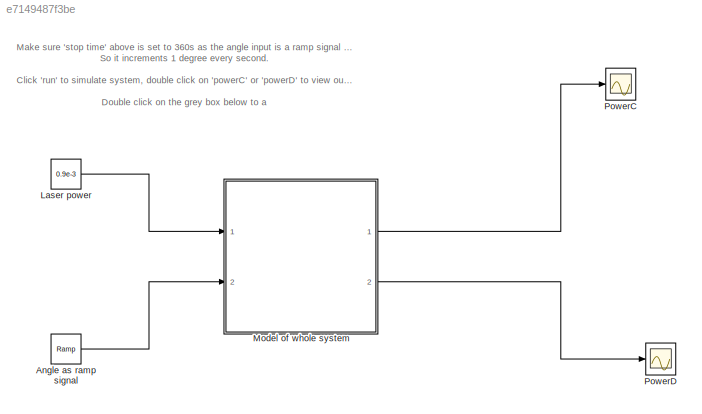
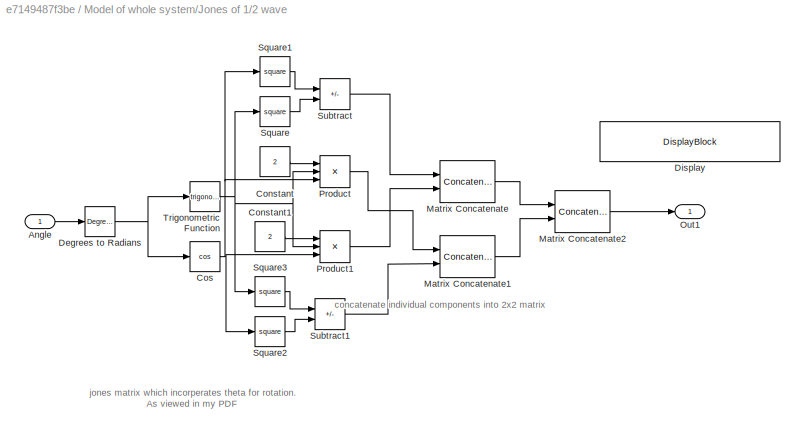
MODEL slx_e7149487f3be
KIND model
CONFIG AbsTol = auto
CONFIG EnableMultiTasking = off
CONFIG FixedStep = auto
CONFIG MaxStep = auto
CONFIG MinStep = auto
CONFIG RelTol = 1e-3
CONFIG SampleTimeConstraint = Unconstrained
CONFIG Solver = VariableStepAuto
CONFIG SolverName = VariableStepAuto
CONFIG StartTime = 0.0
CONFIG StopTime = 360
BLOCK [Reference] Angle as ramp signal  REF=simulink/Sources/Ramp
  Ports = [0, 1]
  SourceBlock = simulink/Sources/Ramp
  SourceProductBaseCode = SL
  SourceType = Ramp
BLOCK [Constant] Laser power
  Value = 0.9e-3
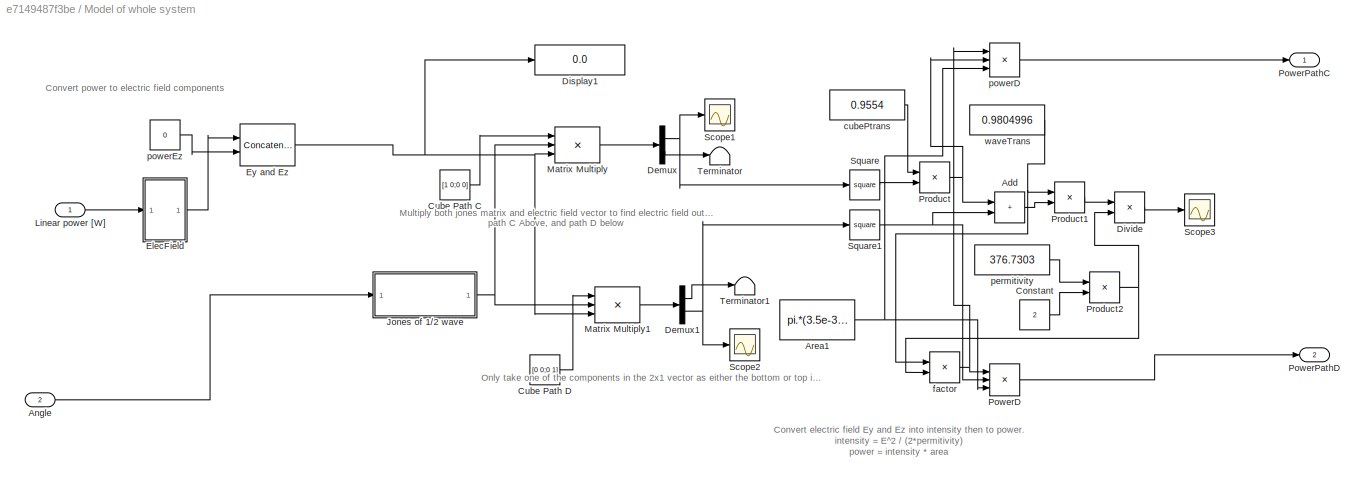
BLOCK [SubSystem] Model of whole system
  Ports = [2, 2]
  RequestExecContextInheritance = off
BLOCK [Sum] Model of whole system/Add
  IconShape = rectangular
  Ports = [2, 1]
BLOCK [Inport] Model of whole system/Angle
  Port = 2
BLOCK [Constant] Model of whole system/Area1
  Value = pi.*(3.5e-3.^2)
BLOCK [Constant] Model of whole system/Constant
  Value = 2
BLOCK [Constant] Model of whole system/Cube Path C
  Value = [1 0;0 0]
BLOCK [Constant] Model of whole system/Cube Path D
  Value = [0 0;0 1]
BLOCK [Demux] Model of whole system/Demux
  Outputs = 2
  Ports = [1, 2]
BLOCK [Demux] Model of whole system/Demux1
  Outputs = 2
  Ports = [1, 2]
BLOCK [Display] Model of whole system/Display1
  Decimation = 1
  Ports = [1]
BLOCK [Product] Model of whole system/Divide
  Inputs = */
  Ports = [2, 1]
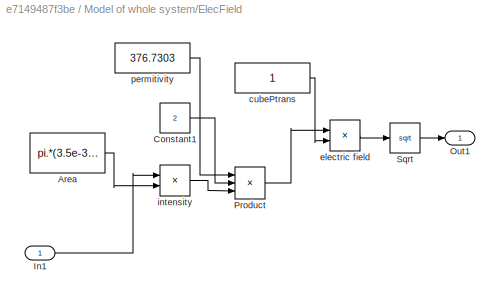
BLOCK [SubSystem] Model of whole system/ElecField
  Ports = [1, 1]
  RequestExecContextInheritance = off
BLOCK [Constant] Model of whole system/ElecField/Area
  Value = pi.*(3.5e-3.^2)
BLOCK [Constant] Model of whole system/ElecField/Constant1
  Value = 2
BLOCK [Inport] Model of whole system/ElecField/In1
BLOCK [Outport] Model of whole system/ElecField/Out1
BLOCK [Product] Model of whole system/ElecField/Product
  Inputs = 3
  Ports = [3, 1]
BLOCK [Sqrt] Model of whole system/ElecField/Sqrt
BLOCK [Constant] Model of whole system/ElecField/cubePtrans
BLOCK [Product] Model of whole system/ElecField/electric field
  Inputs = */
  Ports = [2, 1]
BLOCK [Product] Model of whole system/ElecField/intensity
  Inputs = */
  Ports = [2, 1]
BLOCK [Constant] Model of whole system/ElecField/permitivity
  Value = 376.7303
BLOCK [Concatenate] Model of whole system/Ey and Ez
  Mode = Multidimensional array
  Ports = [2, 1]
BLOCK [SubSystem] Model of whole system/Jones of 1//2 wave
  Ports = [1, 1]
  RequestExecContextInheritance = off
BLOCK [Inport] Model of whole system/Jones of 1//2 wave/Angle
BLOCK [Constant] Model of whole system/Jones of 1//2 wave/Constant
  Value = 2
BLOCK [Constant] Model of whole system/Jones of 1//2 wave/Constant1
  Value = 2
BLOCK [Trigonometry] Model of whole system/Jones of 1//2 wave/Cos
  Operator = cos
  Ports = [1, 1]
BLOCK [Reference] Model of whole system/Jones of 1//2 wave/Degrees to Radians  REF=simulink_extras/Transformations/Degrees to
Radians
  Ports = [1, 1]
  SourceBlock = simulink_extras/Transformations/Degrees to\nRadians
  SourceProductBaseCode = SL
  SourceType = DegreesToRadians
BLOCK [DisplayBlock] Model of whole system/Jones of 1//2 wave/Display
  Format = short
  LabelPosition = Hide
  Transparency = 1
BLOCK [Concatenate] Model of whole system/Jones of 1//2 wave/Matrix Concatenate
  ConcatenateDimension = 2
  Mode = Multidimensional array
  Ports = [2, 1]
BLOCK [Concatenate] Model of whole system/Jones of 1//2 wave/Matrix Concatenate1
  ConcatenateDimension = 2
  Mode = Multidimensional array
  Ports = [2, 1]
BLOCK [Concatenate] Model of whole system/Jones of 1//2 wave/Matrix Concatenate2
  Mode = Multidimensional array
  Ports = [2, 1]
BLOCK [Outport] Model of whole system/Jones of 1//2 wave/Out1
BLOCK [Product] Model of whole system/Jones of 1//2 wave/Product
  Inputs = 3
  Ports = [3, 1]
BLOCK [Product] Model of whole system/Jones of 1//2 wave/Product1
  Inputs = 3
  Ports = [3, 1]
BLOCK [Math] Model of whole system/Jones of 1//2 wave/Square
  Operator = square
  Ports = [1, 1]
BLOCK [Math] Model of whole system/Jones of 1//2 wave/Square1
  Operator = square
  Ports = [1, 1]
BLOCK [Math] Model of whole system/Jones of 1//2 wave/Square2
  Operator = square
  Ports = [1, 1]
BLOCK [Math] Model of whole system/Jones of 1//2 wave/Square3
  Operator = square
  Ports = [1, 1]
BLOCK [Sum] Model of whole system/Jones of 1//2 wave/Subtract
  IconShape = rectangular
  Inputs = +-
  Ports = [2, 1]
BLOCK [Sum] Model of whole system/Jones of 1//2 wave/Subtract1
  IconShape = rectangular
  Inputs = +-
  Ports = [2, 1]
BLOCK [Trigonometry] Model of whole system/Jones of 1//2 wave/Trigonometric Function
  Ports = [1, 1]
BLOCK [Inport] Model of whole system/Linear power [W]
BLOCK [Product] Model of whole system/Matrix Multiply
  Inputs = 3
  Multiplication = Matrix(*)
  Ports = [3, 1]
BLOCK [Product] Model of whole system/Matrix Multiply1
  Inputs = 3
  Multiplication = Matrix(*)
  Ports = [3, 1]
BLOCK [Product] Model of whole system/PowerD
  Inputs = 3
  Ports = [3, 1]
BLOCK [Outport] Model of whole system/PowerPathC
BLOCK [Outport] Model of whole system/PowerPathD
  Port = 2
BLOCK [Product] Model of whole system/Product
  Ports = [2, 1]
BLOCK [Product] Model of whole system/Product1
  Ports = [2, 1]
BLOCK [Product] Model of whole system/Product2
  Ports = [2, 1]
BLOCK [Scope] Model of whole system/Scope1
  Floating = off
  NumInputPorts = 1
  Ports = [1]
  ScopeSpecificationString = Simulink.scopes.TimeScopeBlockCfg('CurrentConfiguration', extmgr.ConfigurationSet(extmgr.Configuration('Core','General UI',true),extmgr.Configuration('Core','Source UI',true),extmgr.Configuration('Sources','WiredSimulink',true,'DataLoggingVariableName','ScopeData1'),extmgr.Configuration('Visuals','Time Domain',true,'SerializedDisplays',{struct('MinYLimReal','-164.75002','MaxYLimReal','165.79673','...<+1380ch>
BLOCK [Scope] Model of whole system/Scope2
  Floating = off
  NumInputPorts = 1
  Ports = [1]
  ScopeSpecificationString = Simulink.scopes.TimeScopeBlockCfg('CurrentConfiguration', extmgr.ConfigurationSet(extmgr.Configuration('Core','General UI',true),extmgr.Configuration('Core','Source UI',true),extmgr.Configuration('Sources','WiredSimulink',true,'DataLoggingVariableName','ScopeData2'),extmgr.Configuration('Visuals','Time Domain',true,'SerializedDisplays',{struct('MinYLimReal','-165.60015','MaxYLimReal','165.60015','...<+1481ch>
BLOCK [Scope] Model of whole system/Scope3
  Floating = off
  NumInputPorts = 1
  Ports = [1]
  ScopeSpecificationString = Simulink.scopes.TimeScopeBlockCfg('CurrentConfiguration', extmgr.ConfigurationSet(extmgr.Configuration('Core','General UI',true),extmgr.Configuration('Core','Source UI',true),extmgr.Configuration('Sources','WiredSimulink',true),extmgr.Configuration('Visuals','Time Domain',true,'SerializedDisplays',{struct('MinYLimReal','21.77999','MaxYLimReal','23.05329','YLabelReal','','MinYLimMag','21.77999','Ma...<+1332ch>
BLOCK [Math] Model of whole system/Square
  Operator = square
  Ports = [1, 1]
BLOCK [Math] Model of whole system/Square1
  Operator = square
  Ports = [1, 1]
BLOCK [Terminator] Model of whole system/Terminator
BLOCK [Terminator] Model of whole system/Terminator1
BLOCK [Constant] Model of whole system/cubePtrans
  Value = 0.9554
BLOCK [Product] Model of whole system/factor
  Inputs = */
  Ports = [2, 1]
BLOCK [Constant] Model of whole system/permitivity
  Value = 376.7303
BLOCK [Product] Model of whole system/powerD
  Inputs = 3
  Ports = [3, 1]
BLOCK [Constant] Model of whole system/powerEz
  Value = 0
BLOCK [Constant] Model of whole system/waveTrans
  Value = 0.9804996
BLOCK [Scope] PowerC
  Floating = off
  NumInputPorts = 1
  Ports = [1]
  ScopeSpecificationString = Simulink.scopes.TimeScopeBlockCfg('CurrentConfiguration', extmgr.ConfigurationSet(extmgr.Configuration('Core','General UI',true),extmgr.Configuration('Core','Source UI',true),extmgr.Configuration('Sources','WiredSimulink',true,'DataLoggingVariableName','ScopeData3'),extmgr.Configuration('Visuals','Time Domain',true,'SerializedDisplays',{struct('MinYLimReal','-0.0001','MaxYLimReal','0.00095','YLabe...<+1380ch>
BLOCK [Scope] PowerD
  Floating = off
  NumInputPorts = 1
  Ports = [1]
  ScopeSpecificationString = Simulink.scopes.TimeScopeBlockCfg('CurrentConfiguration', extmgr.ConfigurationSet(extmgr.Configuration('Core','General UI',true),extmgr.Configuration('Core','Source UI',true),extmgr.Configuration('Sources','WiredSimulink',true,'DataLoggingVariableName','ScopeData4'),extmgr.Configuration('Visuals','Time Domain',true,'SerializedDisplays',{struct('MinYLimReal','0.00044','MaxYLimReal','0.00092','YLabe...<+1440ch>
ANNOTATION (root): Make sure 'stop time' above is set to 360s as the angle input is a ramp signal with gradient 1. So it increments 1 degree every second. Click 'run' to simulate system, double click on 'powerC' or 'powerD' to view output power graphs. Double click on the grey box below to a ccess subsystem.
ANNOTATION Model of whole system: Convert electric field Ey and Ez into intensity then to power. intensity = E^2 / (2*permitivity) power = intensity * area
ANNOTATION Model of whole system: Convert power to electric field components
ANNOTATION Model of whole system: Multiply both jones matrix and electric field vector to find electric field output. path C Above, and path D below
ANNOTATION Model of whole system: Only take one of the components in the 2x1 vector as either the bottom or top is always 0.
ANNOTATION Model of whole system/Jones of 1//2 wave: concatenate individual components into 2x2 matrix
ANNOTATION Model of whole system/Jones of 1//2 wave: jones matrix which incorperates theta for rotation. As viewed in my PDF
LINE Angle as ramp signal:1 -> Model of whole system:2
LINE Laser power:1 -> Model of whole system:1
LINE Model of whole system/Add:1 -> Model of whole system/Product1:2
LINE Model of whole system/Angle:1 -> Model of whole system/Jones of 1//2 wave:1
NET Model of whole system/Area1:1 -> Model of whole system/PowerD:3, Model of whole system/powerD:3
LINE Model of whole system/Constant:1 -> Model of whole system/Product2:2
LINE Model of whole system/Cube Path C:1 -> Model of whole system/Matrix Multiply:1
LINE Model of whole system/Cube Path D:1 -> Model of whole system/Matrix Multiply1:1
LINE Model of whole system/Demux1:1 -> Model of whole system/Terminator1:1
NET Model of whole system/Demux1:2 -> Model of whole system/Scope2:1, Model of whole system/Square1:1
NET Model of whole system/Demux:1 -> Model of whole system/Scope1:1, Model of whole system/Square:1
LINE Model of whole system/Demux:2 -> Model of whole system/Terminator:1
LINE Model of whole system/Divide:1 -> Model of whole system/Scope3:1
LINE Model of whole system/ElecField/Area:1 -> Model of whole system/ElecField/intensity:2
LINE Model of whole system/ElecField/Constant1:1 -> Model of whole system/ElecField/Product:2
LINE Model of whole system/ElecField/In1:1 -> Model of whole system/ElecField/intensity:1
LINE Model of whole system/ElecField/Product:1 -> Model of whole system/ElecField/electric field:1
LINE Model of whole system/ElecField/Sqrt:1 -> Model of whole system/ElecField/Out1:1
LINE Model of whole system/ElecField/cubePtrans:1 -> Model of whole system/ElecField/electric field:2
LINE Model of whole system/ElecField/electric field:1 -> Model of whole system/ElecField/Sqrt:1
LINE Model of whole system/ElecField/intensity:1 -> Model of whole system/ElecField/Product:3
LINE Model of whole system/ElecField/permitivity:1 -> Model of whole system/ElecField/Product:1
LINE Model of whole system/ElecField:1 -> Model of whole system/Ey and Ez:1
NET Model of whole system/Ey and Ez:1 -> Model of whole system/Display1:1, Model of whole system/Matrix Multiply1:3, Model of whole system/Matrix Multiply:3
LINE Model of whole system/Jones of 1//2 wave/Angle:1 -> Model of whole system/Jones of 1//2 wave/Degrees to Radians:1
LINE Model of whole system/Jones of 1//2 wave/Constant1:1 -> Model of whole system/Jones of 1//2 wave/Product1:1
LINE Model of whole system/Jones of 1//2 wave/Constant:1 -> Model of whole system/Jones of 1//2 wave/Product:1
NET Model of whole system/Jones of 1//2 wave/Cos:1 -> Model of whole system/Jones of 1//2 wave/Product1:3, Model of whole system/Jones of 1//2 wave/Product:3, Model of whole system/Jones of 1//2 wave/Square1:1, Model of whole system/Jones of 1//2 wave/Square2:1
NET Model of whole system/Jones of 1//2 wave/Degrees to Radians:1 -> Model of whole system/Jones of 1//2 wave/Cos:1, Model of whole system/Jones of 1//2 wave/Trigonometric Function:1
LINE Model of whole system/Jones of 1//2 wave/Matrix Concatenate1:1 -> Model of whole system/Jones of 1//2 wave/Matrix Concatenate2:2
LINE Model of whole system/Jones of 1//2 wave/Matrix Concatenate2:1 -> Model of whole system/Jones of 1//2 wave/Out1:1
LINE Model of whole system/Jones of 1//2 wave/Matrix Concatenate:1 -> Model of whole system/Jones of 1//2 wave/Matrix Concatenate2:1
LINE Model of whole system/Jones of 1//2 wave/Product1:1 -> Model of whole system/Jones of 1//2 wave/Matrix Concatenate:2
LINE Model of whole system/Jones of 1//2 wave/Product:1 -> Model of whole system/Jones of 1//2 wave/Matrix Concatenate1:1
LINE Model of whole system/Jones of 1//2 wave/Square1:1 -> Model of whole system/Jones of 1//2 wave/Subtract:1
LINE Model of whole system/Jones of 1//2 wave/Square2:1 -> Model of whole system/Jones of 1//2 wave/Subtract1:2
LINE Model of whole system/Jones of 1//2 wave/Square3:1 -> Model of whole system/Jones of 1//2 wave/Subtract1:1
LINE Model of whole system/Jones of 1//2 wave/Square:1 -> Model of whole system/Jones of 1//2 wave/Subtract:2
LINE Model of whole system/Jones of 1//2 wave/Subtract1:1 -> Model of whole system/Jones of 1//2 wave/Matrix Concatenate1:2
LINE Model of whole system/Jones of 1//2 wave/Subtract:1 -> Model of whole system/Jones of 1//2 wave/Matrix Concatenate:1
NET Model of whole system/Jones of 1//2 wave/Trigonometric Function:1 -> Model of whole system/Jones of 1//2 wave/Product1:2, Model of whole system/Jones of 1//2 wave/Product:2, Model of whole system/Jones of 1//2 wave/Square3:1, Model of whole system/Jones of 1//2 wave/Square:1
NET Model of whole system/Jones of 1//2 wave:1 -> Model of whole system/Matrix Multiply1:2, Model of whole system/Matrix Multiply:2
LINE Model of whole system/Linear power [W]:1 -> Model of whole system/ElecField:1
LINE Model of whole system/Matrix Multiply1:1 -> Model of whole system/Demux1:1
LINE Model of whole system/Matrix Multiply:1 -> Model of whole system/Demux:1
LINE Model of whole system/PowerD:1 -> Model of whole system/PowerPathD:1
LINE Model of whole system/Product1:1 -> Model of whole system/Divide:1
NET Model of whole system/Product2:1 -> Model of whole system/Divide:2, Model of whole system/factor:2
NET Model of whole system/Product:1 -> Model of whole system/Add:1, Model of whole system/powerD:2
NET Model of whole system/Square1:1 -> Model of whole system/Add:2, Model of whole system/PowerD:2
LINE Model of whole system/Square:1 -> Model of whole system/Product:2
LINE Model of whole system/cubePtrans:1 -> Model of whole system/Product:1
NET Model of whole system/factor:1 -> Model of whole system/PowerD:1, Model of whole system/powerD:1
LINE Model of whole system/permitivity:1 -> Model of whole system/Product2:1
LINE Model of whole system/powerD:1 -> Model of whole system/PowerPathC:1
LINE Model of whole system/powerEz:1 -> Model of whole system/Ey and Ez:2
NET Model of whole system/waveTrans:1 -> Model of whole system/Product1:1, Model of whole system/factor:1
LINE Model of whole system:1 -> PowerC:1
LINE Model of whole system:2 -> PowerD:1
note: NET lines group one-source signal fan-out (src -> all destinations, sorted); 1:1 wires keep LINE
